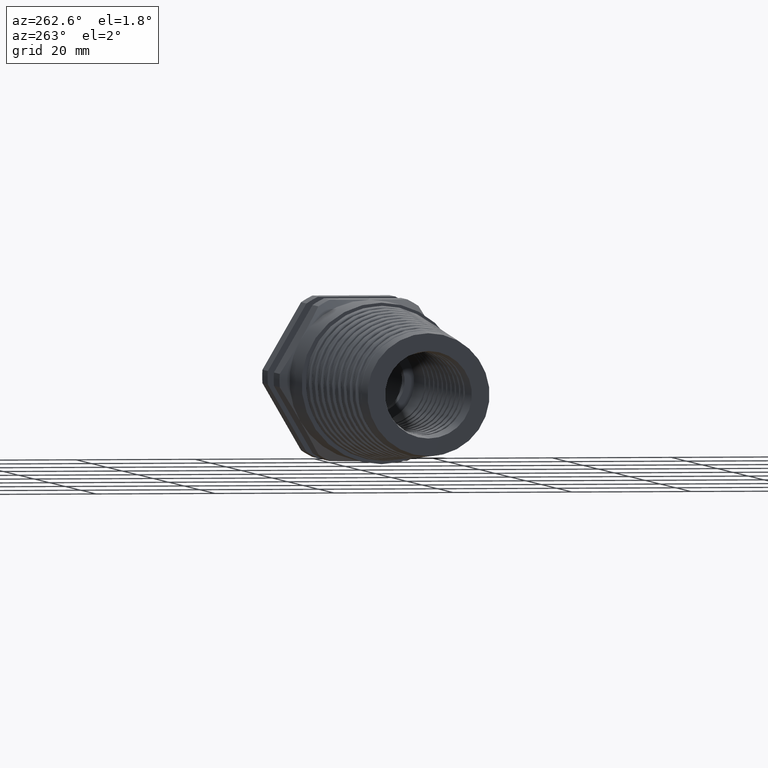
[diagram: clean part render]
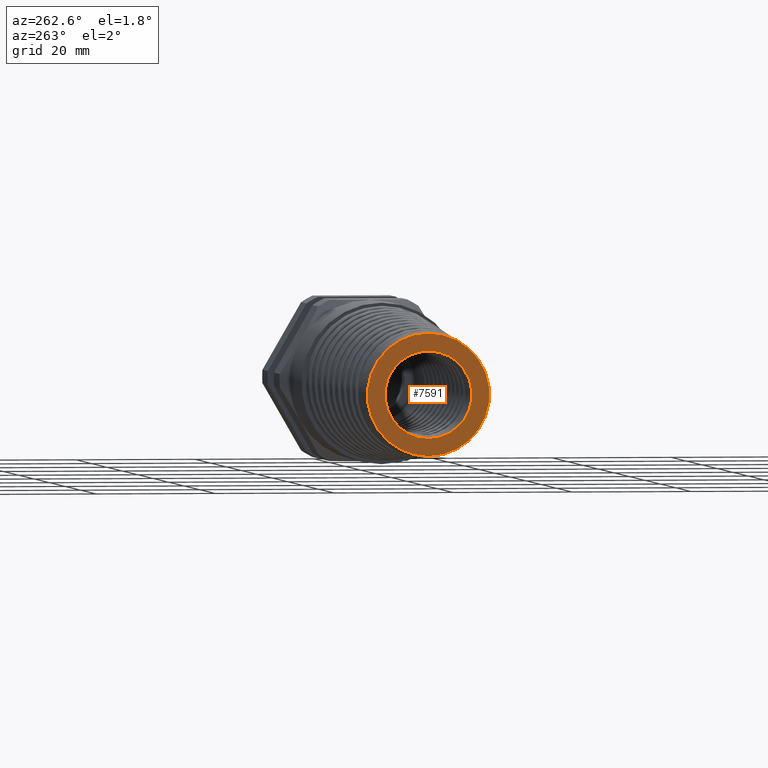
[diagram: same view with one face highlighted and labeled with its STEP entity id]
A machine part, auxiliary view. The second image highlights one B-rep face of the part: STEP entity #7591.
In plain terms, the highlighted planar face has unit normal (-1, 0, 0).
Its self-contained STEP definition (entity closure, byte-faithful):
#6735 = VERTEX_POINT ( 'NONE', #12138 ) ;
#6737 = EDGE_CURVE ( 'NONE', #6735, #6738, #12137, .T. ) ;
#6738 = VERTEX_POINT ( 'NONE', #12132 ) ;
#6746 = EDGE_CURVE ( 'NONE', #6747, #6748, #12119, .T. ) ;
#6747 = VERTEX_POINT ( 'NONE', #12171 ) ;
#6748 = VERTEX_POINT ( 'NONE', #12170 ) ;
#7570 = ORIENTED_EDGE ( 'NONE', *, *, #7571, .F. ) ;
#7571 = EDGE_CURVE ( 'NONE', #6738, #6735, #13698, .T. ) ;
#7572 = ORIENTED_EDGE ( 'NONE', *, *, #6737, .F. ) ;
#7591 = ADVANCED_FACE ( 'NONE', ( #13758, #13757 ), #13755, .T. ) ;
#7592 = EDGE_LOOP ( 'NONE', ( #7593, #7595 ) ) ;
#7593 = ORIENTED_EDGE ( 'NONE', *, *, #7594, .T. ) ;
#7594 = EDGE_CURVE ( 'NONE', #6748, #6747, #13806, .T. ) ;
#7595 = ORIENTED_EDGE ( 'NONE', *, *, #6746, .T. ) ;
#7596 = EDGE_LOOP ( 'NONE', ( #7570, #7572 ) ) ;
#12119 = CIRCLE ( 'NONE', #12175, 0.4039367196918584000 ) ;
#12132 = CARTESIAN_POINT ( 'NONE',  ( -4.250000472440945000, 0.0000000000000000000, 0.2873797903818214300 ) ) ;
#12133 = DIRECTION ( 'NONE',  ( 0.0000000000000000000, 0.0000000000000000000, 1.000000000000000000 ) ) ;
#12134 = DIRECTION ( 'NONE',  ( -1.000000000000000000, 0.0000000000000000000, 0.0000000000000000000 ) ) ;
#12135 = CARTESIAN_POINT ( 'NONE',  ( -4.250000472440945000, 0.0000000000000000000, 0.0000000000000000000 ) ) ;
#12136 = AXIS2_PLACEMENT_3D ( 'NONE', #12135, #12134, #12133 ) ;
#12137 = CIRCLE ( 'NONE', #12136, 0.2873797903818214300 ) ;
#12138 = CARTESIAN_POINT ( 'NONE',  ( -4.250000472440945000, 3.519387404307349000E-017, -0.2873797903818214300 ) ) ;
#12170 = CARTESIAN_POINT ( 'NONE',  ( -4.250000472440945000, 0.0000000000000000000, 0.4039367196918584000 ) ) ;
#12171 = CARTESIAN_POINT ( 'NONE',  ( -4.250000472440945000, -5.022602461613220300E-017, -0.4039367196918584000 ) ) ;
#12172 = DIRECTION ( 'NONE',  ( 0.0000000000000000000, 0.0000000000000000000, 1.000000000000000000 ) ) ;
#12173 = DIRECTION ( 'NONE',  ( -1.000000000000000000, 0.0000000000000000000, 0.0000000000000000000 ) ) ;
#12174 = CARTESIAN_POINT ( 'NONE',  ( -4.250000472440945000, 0.0000000000000000000, 0.0000000000000000000 ) ) ;
#12175 = AXIS2_PLACEMENT_3D ( 'NONE', #12174, #12173, #12172 ) ;
#13694 = DIRECTION ( 'NONE',  ( 0.0000000000000000000, 0.0000000000000000000, 1.000000000000000000 ) ) ;
#13695 = DIRECTION ( 'NONE',  ( -1.000000000000000000, 0.0000000000000000000, 0.0000000000000000000 ) ) ;
#13696 = CARTESIAN_POINT ( 'NONE',  ( -4.250000472440945000, 0.0000000000000000000, 0.0000000000000000000 ) ) ;
#13697 = AXIS2_PLACEMENT_3D ( 'NONE', #13696, #13695, #13694 ) ;
#13698 = CIRCLE ( 'NONE', #13697, 0.2873797903818214300 ) ;
#13743 = DIRECTION ( 'NONE',  ( 0.0000000000000000000, 0.0000000000000000000, 1.000000000000000000 ) ) ;
#13744 = DIRECTION ( 'NONE',  ( -1.000000000000000000, 0.0000000000000000000, 0.0000000000000000000 ) ) ;
#13753 = AXIS2_PLACEMENT_3D ( 'NONE', #13754, #13744, #13743 ) ;
#13754 = CARTESIAN_POINT ( 'NONE',  ( -4.250000472440945000, 0.0000000000000000000, 0.0000000000000000000 ) ) ;
#13755 = PLANE ( 'NONE',  #13753 ) ;
#13757 = FACE_BOUND ( 'NONE', #7596, .T. ) ;
#13758 = FACE_OUTER_BOUND ( 'NONE', #7592, .T. ) ;
#13802 = DIRECTION ( 'NONE',  ( 0.0000000000000000000, 0.0000000000000000000, 1.000000000000000000 ) ) ;
#13803 = DIRECTION ( 'NONE',  ( -1.000000000000000000, 0.0000000000000000000, 0.0000000000000000000 ) ) ;
#13804 = CARTESIAN_POINT ( 'NONE',  ( -4.250000472440945000, 0.0000000000000000000, 0.0000000000000000000 ) ) ;
#13805 = AXIS2_PLACEMENT_3D ( 'NONE', #13804, #13803, #13802 ) ;
#13806 = CIRCLE ( 'NONE', #13805, 0.4039367196918584000 ) ;